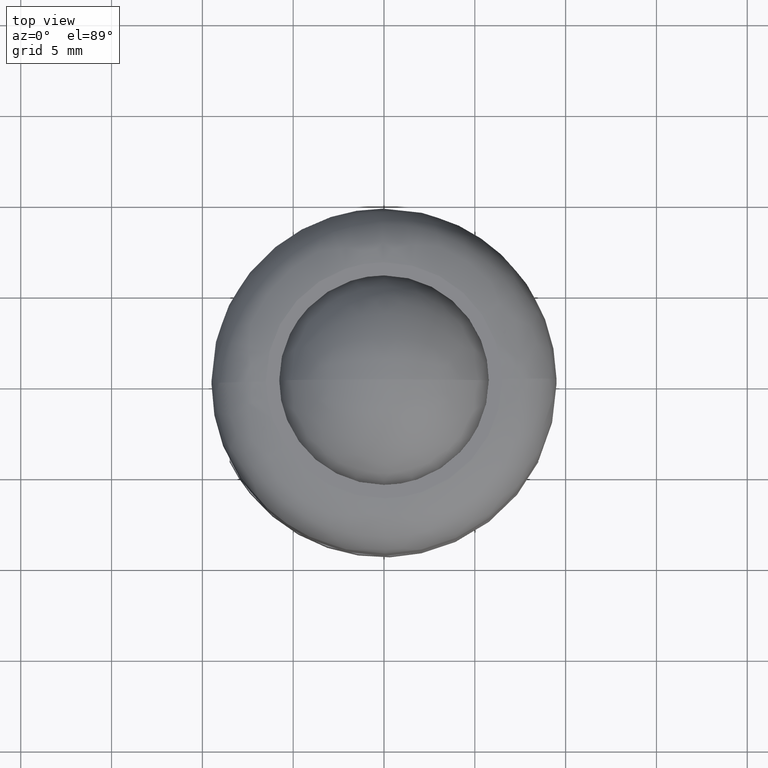
[diagram: clean part render]
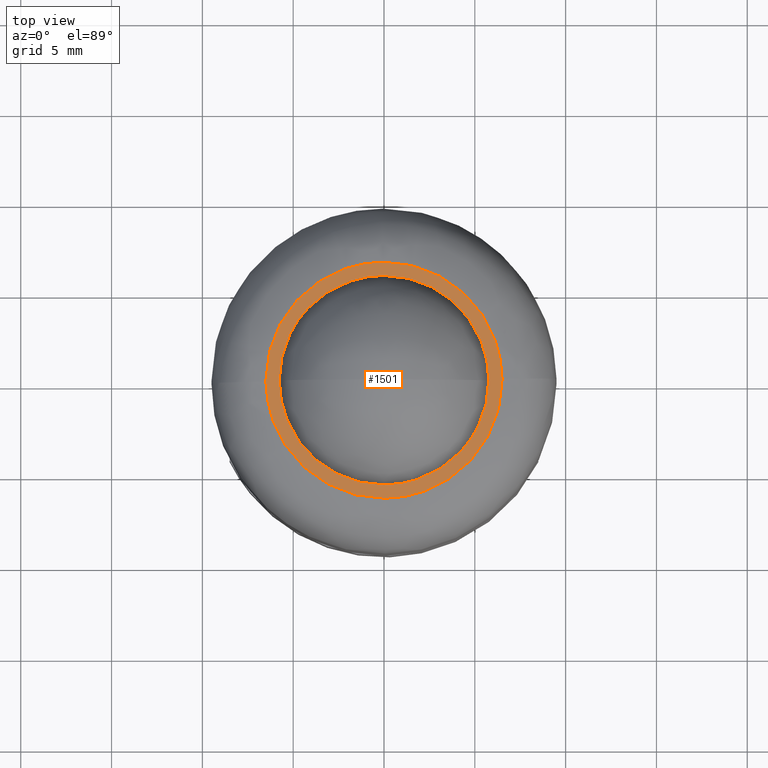
[diagram: same view with one face highlighted and labeled with its STEP entity id]
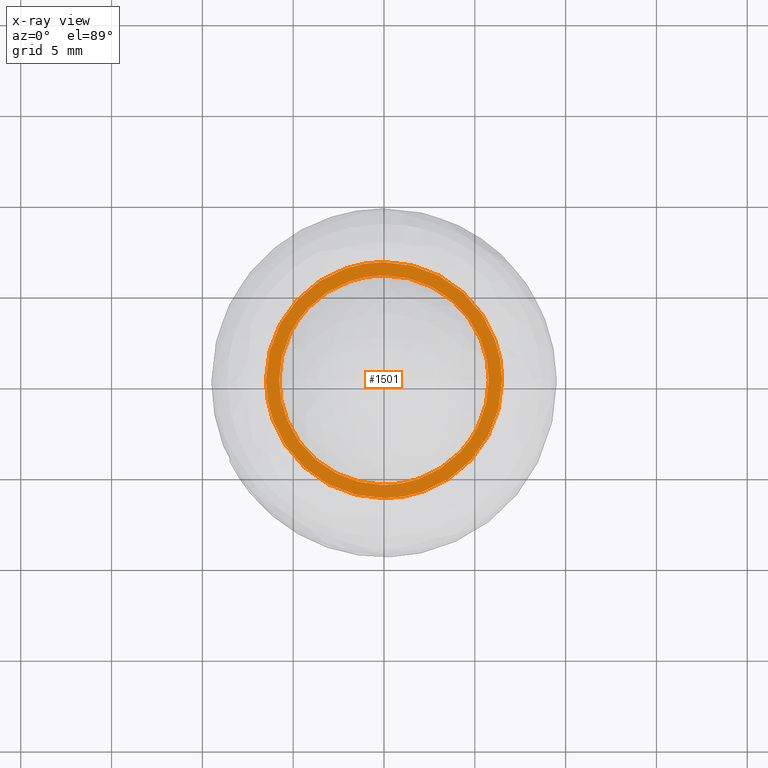
[diagram: x-ray of the same camera — body ghosted, the highlighted face saturated]
A machine part, top view. The second image highlights one B-rep face of the part: STEP entity #1501.
The next image is the same camera in x-ray: the body ghosted, the highlighted face saturated — about 0% of this face is hidden behind the body in this view.
In plain terms, the highlighted face is a freeform B-spline surface patch.
Its self-contained STEP definition (entity closure, byte-faithful):
#1076=CARTESIAN_POINT('',(4.185856307510196,-3.972229339677289,11.0));
#1077=VERTEX_POINT('',#1076);
#1083=CARTESIAN_POINT('',(5.770615218501420,0.0,11.0));
#1084=VERTEX_POINT('',#1083);
#1085=CARTESIAN_POINT('',(5.770615218501420,0.0,11.0));
#1086=CARTESIAN_POINT('',(5.770636416154370,-0.330868730486832,11.0));
#1087=CARTESIAN_POINT('',(5.711598623164730,-1.015423344567294,11.000000000000030));
#1088=CARTESIAN_POINT('',(5.466481364896862,-1.922395794615048,10.999999999999940));
#1089=CARTESIAN_POINT('',(5.003766382725531,-2.955438659521590,11.000000000000121));
#1090=CARTESIAN_POINT('',(4.547294031445538,-3.591656908550168,10.999999999999821));
#1091=CARTESIAN_POINT('',(4.185856307510196,-3.972229339677289,11.0));
#1092=B_SPLINE_CURVE_WITH_KNOTS('',3,(#1085,#1086,#1087,#1088,#1089,#1090,#1091),.UNSPECIFIED.,.F.,.U.,(4,1,1,1,4),(6.641100E-009,0.992606997891506,2.053672084663373,2.806679039416115,4.381162645274340),.UNSPECIFIED.);
#1093=EDGE_CURVE('',#1084,#1077,#1092,.T.);
#1095=CARTESIAN_POINT('',(0.000000362983716,5.770615218501408,11.0));
#1096=VERTEX_POINT('',#1095);
#1097=CARTESIAN_POINT('',(0.000000362983716,5.770615218501408,11.0));
#1098=CARTESIAN_POINT('',(0.472118684497551,5.770729630007045,10.999999999999980));
#1099=CARTESIAN_POINT('',(1.203822834502483,5.680300004158313,11.000000000000030));
#1100=CARTESIAN_POINT('',(2.115478477751154,5.385265455617097,10.999999999999989));
#1101=CARTESIAN_POINT('',(2.811180499674423,5.058828460067486,11.0));
#1102=CARTESIAN_POINT('',(3.598042249501456,4.553866668203005,11.000000000000041));
#1103=CARTESIAN_POINT('',(4.350610257771650,3.846098426136174,10.999999999999950));
#1104=CARTESIAN_POINT('',(4.875586995297158,3.114962752899662,11.000000000000099));
#1105=CARTESIAN_POINT('',(5.232407365084914,2.461925394372048,10.999999999999940));
#1106=CARTESIAN_POINT('',(5.488591388929563,1.838045125486780,11.000000000000050));
#1107=CARTESIAN_POINT('',(5.712036947750010,0.979606368144738,10.999999999999959));
#1108=CARTESIAN_POINT('',(5.770659983028666,0.365886258684581,11.000000000000020));
#1109=CARTESIAN_POINT('',(5.770615218501420,0.0,11.0));
#1110=B_SPLINE_CURVE_WITH_KNOTS('',3,(#1097,#1098,#1099,#1100,#1101,#1102,#1103,#1104,#1105,#1106,#1107,#1108,#1109),.UNSPECIFIED.,.F.,.U.,(4,1,1,1,1,1,1,1,1,1,4),(0.000000027438697,1.416318575882124,2.195302495851981,2.868059282186271,3.717863261621555,4.992541319994513,5.948555401548992,6.408865147196239,7.223257222480170,7.966825341024431,9.064475203494595),.UNSPECIFIED.);
#1111=EDGE_CURVE('',#1096,#1084,#1110,.T.);
#1113=CARTESIAN_POINT('',(-4.185856307510187,3.972229339677280,11.0));
#1114=VERTEX_POINT('',#1113);
#1115=CARTESIAN_POINT('',(-4.185856307510187,3.972229339677280,11.0));
#1116=CARTESIAN_POINT('',(-3.925638364954152,4.246516527639176,10.999999999999980));
#1117=CARTESIAN_POINT('',(-3.369542502371381,4.727590254497458,11.0));
#1118=CARTESIAN_POINT('',(-2.488926232949005,5.235436691816897,11.000000000000060));
#1119=CARTESIAN_POINT('',(-1.733060460405674,5.518382525492663,10.999999999999970));
#1120=CARTESIAN_POINT('',(-0.926886744134003,5.716471941368435,11.0));
#1121=CARTESIAN_POINT('',(-0.378084554713749,5.770668751708558,10.999999999999980));
#1122=CARTESIAN_POINT('',(0.000000362983716,5.770615218501408,11.0));
#1123=B_SPLINE_CURVE_WITH_KNOTS('',3,(#1115,#1116,#1117,#1118,#1119,#1120,#1121,#1122),.UNSPECIFIED.,.F.,.U.,(4,1,1,1,1,4),(8.185076E-009,1.134239813875826,2.195308430087150,3.036831974544648,3.549073296318514,4.683313102009385),.UNSPECIFIED.);
#1124=EDGE_CURVE('',#1114,#1096,#1123,.T.);
#1154=CARTESIAN_POINT('',(-5.770615218501420,0.0,11.0));
#1155=VERTEX_POINT('',#1154);
#1156=CARTESIAN_POINT('',(-5.770615218501420,0.0,11.0));
#1157=CARTESIAN_POINT('',(-5.770676410065487,0.399330474942390,11.000000000000020));
#1158=CARTESIAN_POINT('',(-5.704013330755417,1.038219216016976,10.999999999999959));
#1159=CARTESIAN_POINT('',(-5.447995016155461,1.963701925505807,11.000000000000050));
#1160=CARTESIAN_POINT('',(-5.018558923441754,2.937987968270839,10.999999999999790));
#1161=CARTESIAN_POINT('',(-4.531543653555201,3.608182742065899,11.000000000000220));
#1162=CARTESIAN_POINT('',(-4.185856307510187,3.972229339677280,11.0));
#1163=B_SPLINE_CURVE_WITH_KNOTS('',3,(#1156,#1157,#1158,#1159,#1160,#1161,#1162),.UNSPECIFIED.,.F.,.U.,(4,1,1,1,4),(6.640233E-009,1.197974334706758,1.916761898762307,2.875135023366425,4.381162645274342),.UNSPECIFIED.);
#1164=EDGE_CURVE('',#1155,#1114,#1163,.T.);
#1166=CARTESIAN_POINT('',(-0.000000362983661,-5.770615218501408,11.0));
#1167=VERTEX_POINT('',#1166);
#1168=CARTESIAN_POINT('',(-0.000000362983661,-5.770615218501408,11.0));
#1169=CARTESIAN_POINT('',(-0.424905630093702,-5.770703202164627,11.000000000000011));
#1170=CARTESIAN_POINT('',(-1.003197683389377,-5.706440415199080,10.999999999999989));
#1171=CARTESIAN_POINT('',(-1.836325689105617,-5.484101572718242,11.0));
#1172=CARTESIAN_POINT('',(-2.596415126982710,-5.185590085399323,11.000000000000060));
#1173=CARTESIAN_POINT('',(-3.376783830816826,-4.711307718056222,10.999999999999901));
#1174=CARTESIAN_POINT('',(-4.041225018262765,-4.141644526328959,11.000000000000259));
#1175=CARTESIAN_POINT('',(-4.627019160511586,-3.491383812141019,10.999999999999851));
#1176=CARTESIAN_POINT('',(-5.152352141997898,-2.672990873525648,11.000000000000041));
#1177=CARTESIAN_POINT('',(-5.511439167488206,-1.782877405472283,11.0));
#1178=CARTESIAN_POINT('',(-5.721809054681038,-0.896990381301532,11.000000000000011));
#1179=CARTESIAN_POINT('',(-5.770642220784566,-0.330473344754355,11.0));
#1180=CARTESIAN_POINT('',(-5.770615218501420,0.0,11.0));
#1181=B_SPLINE_CURVE_WITH_KNOTS('',3,(#1168,#1169,#1170,#1171,#1172,#1173,#1174,#1175,#1176,#1177,#1178,#1179,#1180),.UNSPECIFIED.,.F.,.U.,(4,1,1,1,1,1,1,1,1,1,4),(0.000000027442088,1.274687294045209,1.734996813705168,2.584794474475788,3.717863261621917,4.461427580382519,5.204982075459791,6.338049054486652,7.364889492609118,8.073058299478788,9.064475203494620),.UNSPECIFIED.);
#1182=EDGE_CURVE('',#1167,#1155,#1181,.T.);
#1184=CARTESIAN_POINT('',(4.185856307510196,-3.972229339677289,11.0));
#1185=CARTESIAN_POINT('',(3.883685420176319,-4.290773390561156,11.000000000000041));
#1186=CARTESIAN_POINT('',(3.272007623816610,-4.803139769282907,10.999999999999920));
#1187=CARTESIAN_POINT('',(2.192158515683852,-5.381089749275247,11.000000000000110));
#1188=CARTESIAN_POINT('',(1.109853704459188,-5.702261812235780,10.999999999999980));
#1189=CARTESIAN_POINT('',(0.341489333597528,-5.770637306419962,11.0));
#1190=CARTESIAN_POINT('',(-0.000000362983661,-5.770615218501408,11.0));
#1191=B_SPLINE_CURVE_WITH_KNOTS('',3,(#1184,#1185,#1186,#1187,#1188,#1189,#1190),.UNSPECIFIED.,.F.,.U.,(4,1,1,1,4),(8.187136E-009,1.317182839143757,2.378235572608034,3.658839386054839,4.683313102009327),.UNSPECIFIED.);
#1192=EDGE_CURVE('',#1077,#1167,#1191,.T.);
#1402=CARTESIAN_POINT('',(-7.149349974803477,-7.149208940803685,11.0));
#1403=CARTESIAN_POINT('',(7.149350323490650,-7.149208940803685,11.0));
#1404=CARTESIAN_POINT('',(-7.149349974803477,7.149209289483977,11.0));
#1405=CARTESIAN_POINT('',(7.149350323490650,7.149209289483977,11.0));
#1406=B_SPLINE_SURFACE_WITH_KNOTS('',1,1,((#1402,#1404),(#1403,#1405)),.UNSPECIFIED.,.F.,.F.,.U.,(2,2),(2,2),(0.0,14.298700298294129),(0.0,14.298418230287661),.UNSPECIFIED.);
#1407=CARTESIAN_POINT('',(-6.499486825749849,-0.081679260661820,11.0));
#1408=VERTEX_POINT('',#1407);
#1409=CARTESIAN_POINT('',(-6.500000000000000,0.0,11.0));
#1410=VERTEX_POINT('',#1409);
#1411=CARTESIAN_POINT('',(-6.499486825749849,-0.081679260661820,11.0));
#1412=CARTESIAN_POINT('',(-6.500000000000000,0.0,11.0));
#1413=QUASI_UNIFORM_CURVE('',1,(#1411,#1412),.UNSPECIFIED.,.F.,.U.);
#1414=EDGE_CURVE('',#1408,#1410,#1413,.T.);
#1415=ORIENTED_EDGE('',*,*,#1414,.F.);
#1416=CARTESIAN_POINT('',(0.040827712705666,-6.499871775615701,11.0));
#1417=VERTEX_POINT('',#1416);
#1418=CARTESIAN_POINT('',(0.040827712705666,-6.499871775615701,11.0));
#1419=CARTESIAN_POINT('',(-0.343161742426852,-6.502322447448677,11.000000000000011));
#1420=CARTESIAN_POINT('',(-1.005567361935297,-6.447588297447734,10.999999999999970));
#1421=CARTESIAN_POINT('',(-2.063672311669150,-6.194161330473057,11.000000000000050));
#1422=CARTESIAN_POINT('',(-3.143423454294345,-5.741435133445068,10.999999999999901));
#1423=CARTESIAN_POINT('',(-4.219230662093755,-5.002576896903186,11.0));
#1424=CARTESIAN_POINT('',(-4.976339987612077,-4.217511580932007,11.000000000000069));
#1425=CARTESIAN_POINT('',(-5.502822674456799,-3.485738871987487,11.0));
#1426=CARTESIAN_POINT('',(-5.865986041156571,-2.837489469470525,10.999999999999989));
#1427=CARTESIAN_POINT('',(-6.192507523235849,-2.039568196178899,11.000000000000011));
#1428=CARTESIAN_POINT('',(-6.429396551492576,-1.126933459756669,10.999999999999989));
#1429=CARTESIAN_POINT('',(-6.495021621571148,-0.439164812557441,11.000000000000011));
#1430=CARTESIAN_POINT('',(-6.499486825749849,-0.081679260661820,11.0));
#1431=B_SPLINE_CURVE_WITH_KNOTS('',3,(#1418,#1419,#1420,#1421,#1422,#1423,#1424,#1425,#1426,#1427,#1428,#1429,#1430),.UNSPECIFIED.,.F.,.U.,(4,1,1,1,1,1,1,1,1,1,4),(0.000000028042928,1.151986262405380,1.986197515365547,3.257367682718765,4.647718894996084,5.879136280238227,6.514724367736870,7.348935251835419,8.103694867535253,9.096801310454945,10.169338550861999),.UNSPECIFIED.);
#1432=EDGE_CURVE('',#1417,#1408,#1431,.T.);
#1433=ORIENTED_EDGE('',*,*,#1432,.F.);
#1434=CARTESIAN_POINT('',(6.500000000000000,0.0,11.0));
#1435=VERTEX_POINT('',#1434);
#1436=CARTESIAN_POINT('',(6.500000000000000,0.0,11.0));
#1437=CARTESIAN_POINT('',(6.500099423233651,-0.503178737612251,11.0));
#1438=CARTESIAN_POINT('',(6.408824394344764,-1.284366081682846,10.999999999999980));
#1439=CARTESIAN_POINT('',(6.106478295115900,-2.274180337418688,11.000000000000020));
#1440=CARTESIAN_POINT('',(5.729082153129542,-3.122486314917881,10.999999999999950));
#1441=CARTESIAN_POINT('',(5.228086578185538,-3.906930374230854,11.000000000000099));
#1442=CARTESIAN_POINT('',(4.472077563131593,-4.761682695963375,10.999999999999860));
#1443=CARTESIAN_POINT('',(3.671855144287018,-5.402847632882484,11.000000000000041));
#1444=CARTESIAN_POINT('',(2.823796209664406,-5.870865986703160,11.0));
#1445=CARTESIAN_POINT('',(2.111996728647851,-6.161997489913306,11.000000000000060));
#1446=CARTESIAN_POINT('',(1.205546926096176,-6.417965590202996,10.999999999999689));
#1447=CARTESIAN_POINT('',(0.491027845081392,-6.497106293756622,11.000000000000551));
#1448=CARTESIAN_POINT('',(0.040827712705666,-6.499871775615701,11.0));
#1449=B_SPLINE_CURVE_WITH_KNOTS('',3,(#1436,#1437,#1438,#1439,#1440,#1441,#1442,#1443,#1444,#1445,#1446,#1447,#1448),.UNSPECIFIED.,.F.,.U.,(4,1,1,1,1,1,1,1,1,1,4),(0.000000028033162,1.509507669330745,2.343720109349233,3.098481655178754,4.290213190453454,5.124388653103953,6.514740645627436,7.348953614159214,8.024266750830071,8.818752752672827,10.169363960363221),.UNSPECIFIED.);
#1450=EDGE_CURVE('',#1435,#1417,#1449,.T.);
#1451=ORIENTED_EDGE('',*,*,#1450,.F.);
#1452=CARTESIAN_POINT('',(6.499486825749849,0.081679260661820,11.0));
#1453=VERTEX_POINT('',#1452);
#1454=CARTESIAN_POINT('',(6.499486825749849,0.081679260661820,11.0));
#1455=CARTESIAN_POINT('',(6.500000000000000,0.0,11.0));
#1456=QUASI_UNIFORM_CURVE('',1,(#1454,#1455),.UNSPECIFIED.,.F.,.U.);
#1457=EDGE_CURVE('',#1453,#1435,#1456,.T.);
#1458=ORIENTED_EDGE('',*,*,#1457,.F.);
#1459=CARTESIAN_POINT('',(-0.040827712705664,6.499871775615701,11.0));
#1460=VERTEX_POINT('',#1459);
#1461=CARTESIAN_POINT('',(-0.040827712705664,6.499871775615701,11.0));
#1462=CARTESIAN_POINT('',(0.343160564590614,6.502315790194211,11.000000000000020));
#1463=CARTESIAN_POINT('',(1.124807446414590,6.437767159464483,10.999999999999950));
#1464=CARTESIAN_POINT('',(2.331903296858545,6.113349550608249,11.000000000000069));
#1465=CARTESIAN_POINT('',(3.440979466168603,5.562116597397841,10.999999999999959));
#1466=CARTESIAN_POINT('',(4.306011484179962,4.899313526740263,10.999999999999860));
#1467=CARTESIAN_POINT('',(4.954611310329715,4.234980251729557,11.000000000000110));
#1468=CARTESIAN_POINT('',(5.529297752274903,3.471335666223825,10.999999999999931));
#1469=CARTESIAN_POINT('',(5.998770372572196,2.576428600380980,11.0));
#1470=CARTESIAN_POINT('',(6.384302011851498,1.417652718058624,11.0));
#1471=CARTESIAN_POINT('',(6.493122349655709,0.598064868476771,11.0));
#1472=CARTESIAN_POINT('',(6.499486825749849,0.081679260661820,11.0));
#1473=B_SPLINE_CURVE_WITH_KNOTS('',3,(#1461,#1462,#1463,#1464,#1465,#1466,#1467,#1468,#1469,#1470,#1471,#1472),.UNSPECIFIED.,.F.,.U.,(4,1,1,1,1,1,1,1,1,4),(0.000000028042496,1.151986262405185,2.343714253265852,3.734062136585582,4.846341811064109,5.601066371524654,6.514724367737053,7.706452178616257,8.620105885851185,10.169338550861999),.UNSPECIFIED.);
#1474=EDGE_CURVE('',#1460,#1453,#1473,.T.);
#1475=ORIENTED_EDGE('',*,*,#1474,.F.);
#1476=CARTESIAN_POINT('',(-6.500000000000000,0.0,11.0));
#1477=CARTESIAN_POINT('',(-6.500137909637597,0.542910235490984,11.000000000000011));
#1478=CARTESIAN_POINT('',(-6.398211899289196,1.350557112147675,11.000000000000011));
#1479=CARTESIAN_POINT('',(-6.080815999146844,2.335444848803801,10.999999999999959));
#1480=CARTESIAN_POINT('',(-5.731141983728920,3.108640340141511,11.000000000000041));
#1481=CARTESIAN_POINT('',(-5.167333388987851,4.009706533972385,10.999999999999989));
#1482=CARTESIAN_POINT('',(-4.321305426858525,4.914764190560227,11.000000000000011));
#1483=CARTESIAN_POINT('',(-3.345474779466188,5.607541694004214,11.000000000000050));
#1484=CARTESIAN_POINT('',(-2.294638799666839,6.118316677210310,10.999999999999821));
#1485=CARTESIAN_POINT('',(-1.205629176170173,6.425806488690822,11.000000000000480));
#1486=CARTESIAN_POINT('',(-0.398331132388747,6.497635795154528,10.999999999999480));
#1487=CARTESIAN_POINT('',(-0.040827712705664,6.499871775615701,11.0));
#1488=B_SPLINE_CURVE_WITH_KNOTS('',3,(#1476,#1477,#1478,#1479,#1480,#1481,#1482,#1483,#1484,#1485,#1486,#1487),.UNSPECIFIED.,.F.,.U.,(4,1,1,1,1,1,1,1,1,4),(0.000000028030088,1.628685415544677,2.423168264146039,3.098481655176761,4.171034324798725,5.601080366481980,6.792811822092038,7.746195974396001,9.096824040134473,10.169363960363230),.UNSPECIFIED.);
#1489=EDGE_CURVE('',#1410,#1460,#1488,.T.);
#1490=ORIENTED_EDGE('',*,*,#1489,.F.);
#1491=EDGE_LOOP('',(#1415,#1433,#1451,#1458,#1475,#1490));
#1492=FACE_OUTER_BOUND('',#1491,.T.);
#1493=ORIENTED_EDGE('',*,*,#1111,.T.);
#1494=ORIENTED_EDGE('',*,*,#1093,.T.);
#1495=ORIENTED_EDGE('',*,*,#1192,.T.);
#1496=ORIENTED_EDGE('',*,*,#1182,.T.);
#1497=ORIENTED_EDGE('',*,*,#1164,.T.);
#1498=ORIENTED_EDGE('',*,*,#1124,.T.);
#1499=EDGE_LOOP('',(#1493,#1494,#1495,#1496,#1497,#1498));
#1500=FACE_BOUND('',#1499,.T.);
#1501=ADVANCED_FACE('',(#1492,#1500),#1406,.T.);